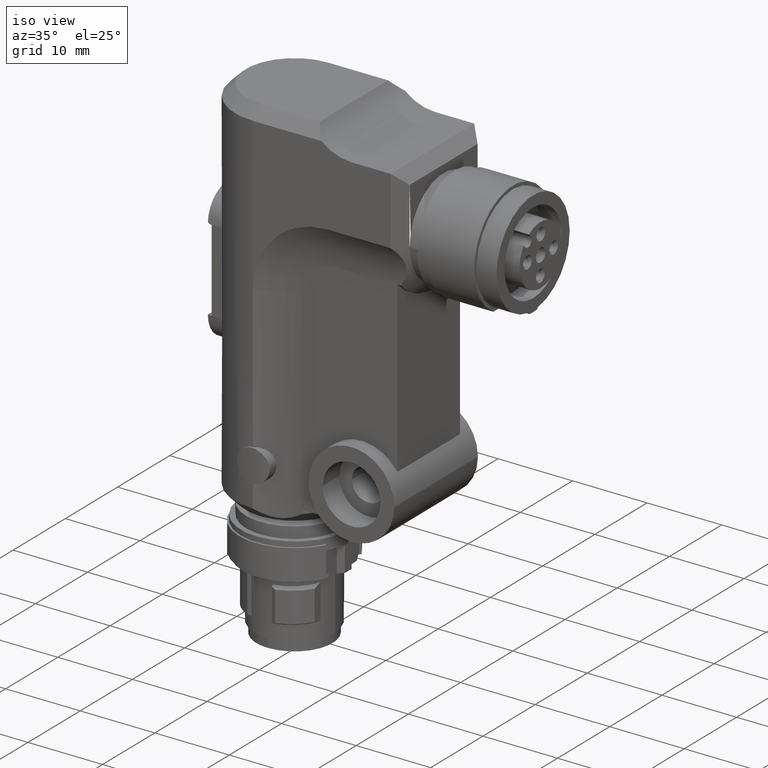
[diagram: clean part render]
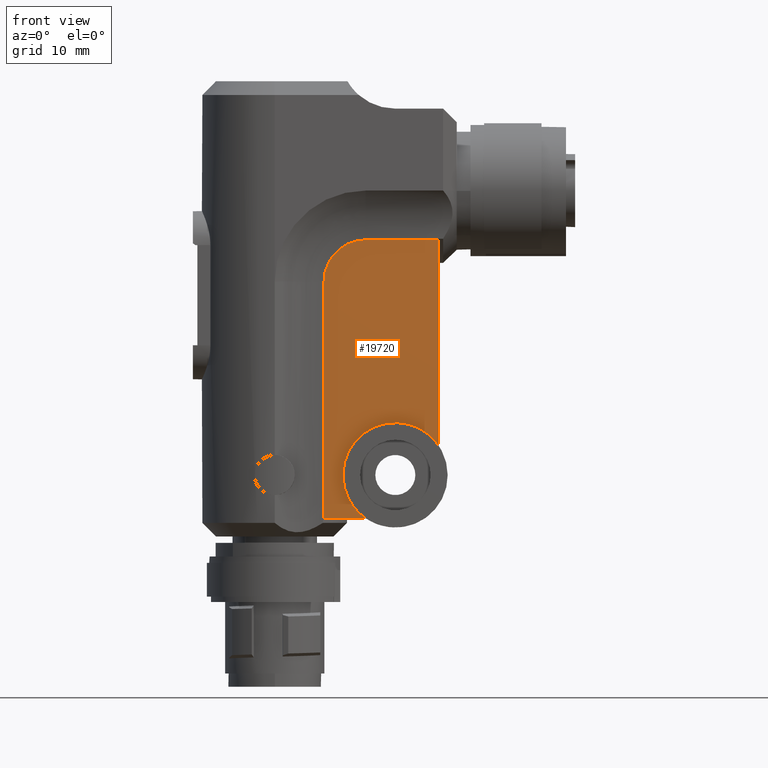
[diagram: tour spotlight — one face highlighted and labeled with its STEP entity id]
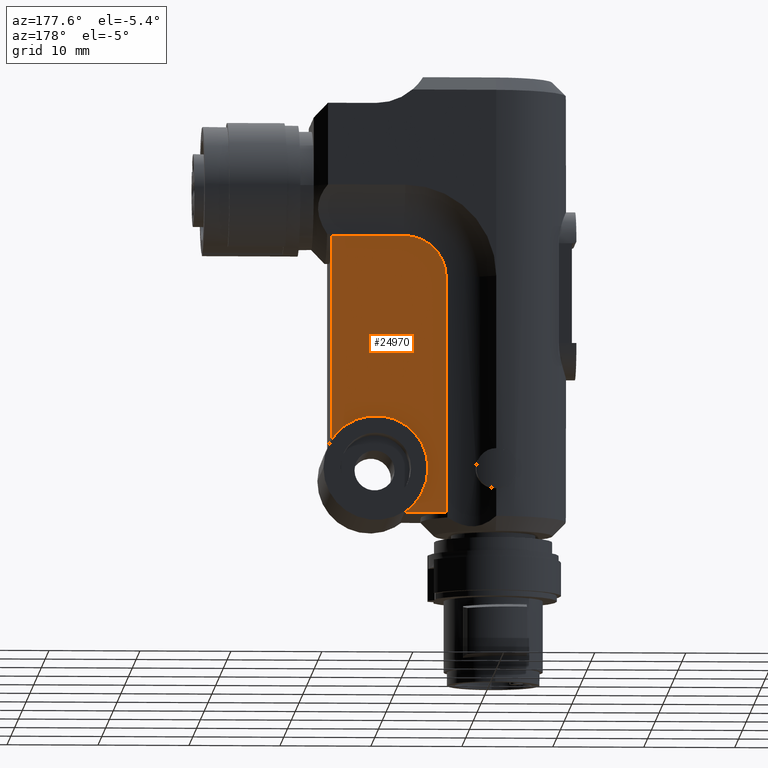
[diagram: tour spotlight — one face highlighted and labeled with its STEP entity id]
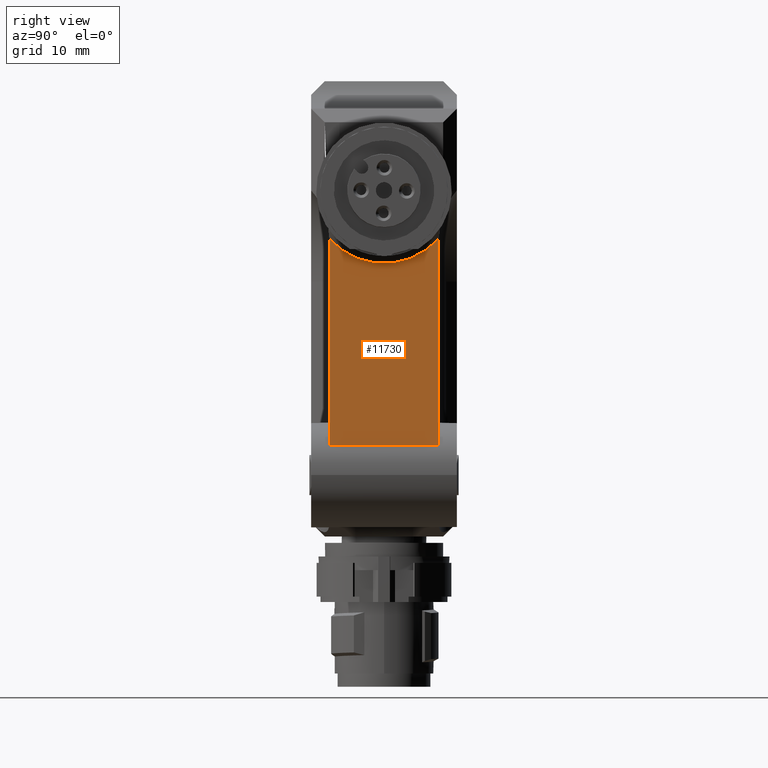
[diagram: tour spotlight — one face highlighted and labeled with its STEP entity id]
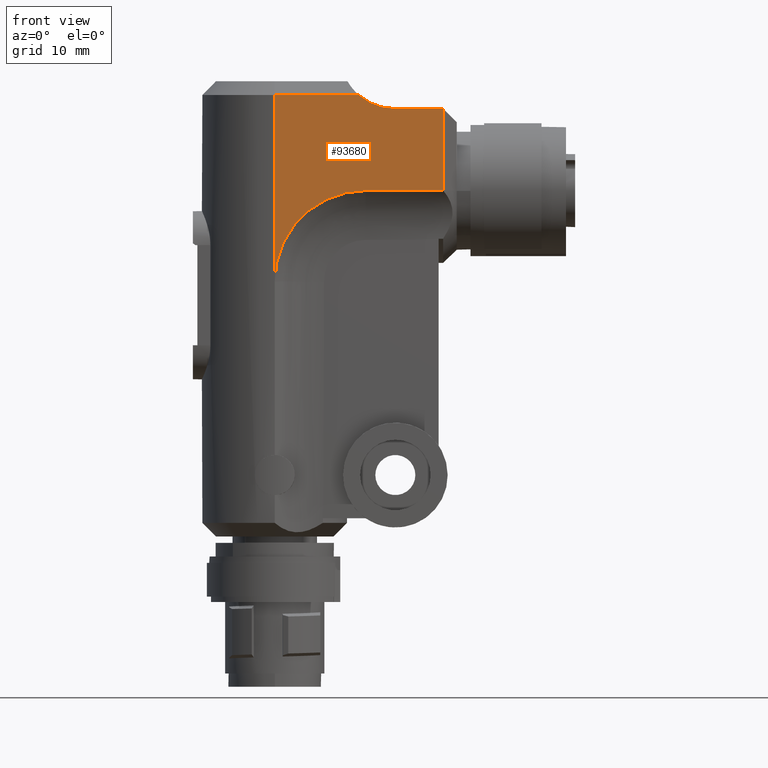
[diagram: tour spotlight — one face highlighted and labeled with its STEP entity id]
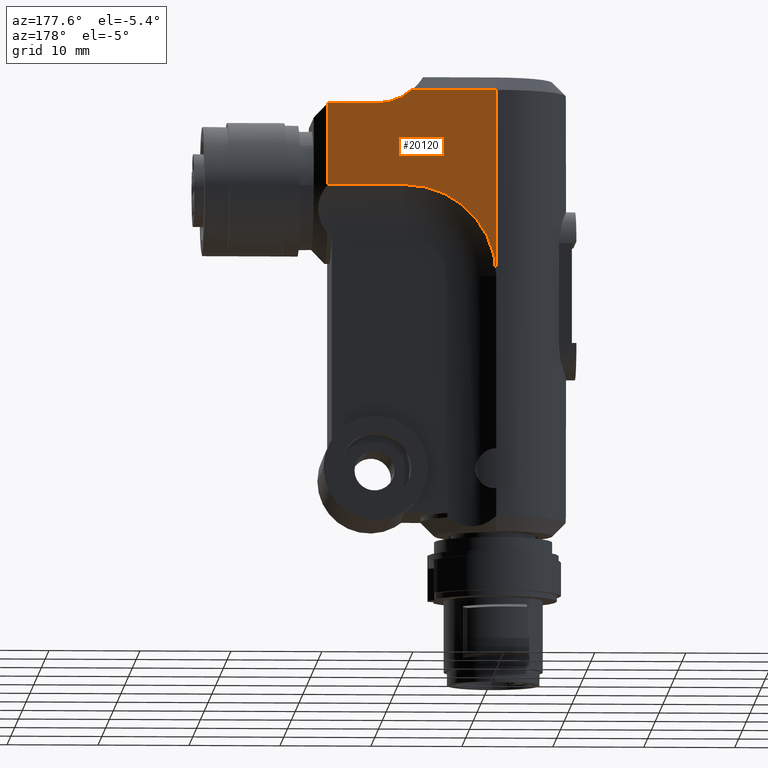
[diagram: tour spotlight — one face highlighted and labeled with its STEP entity id]
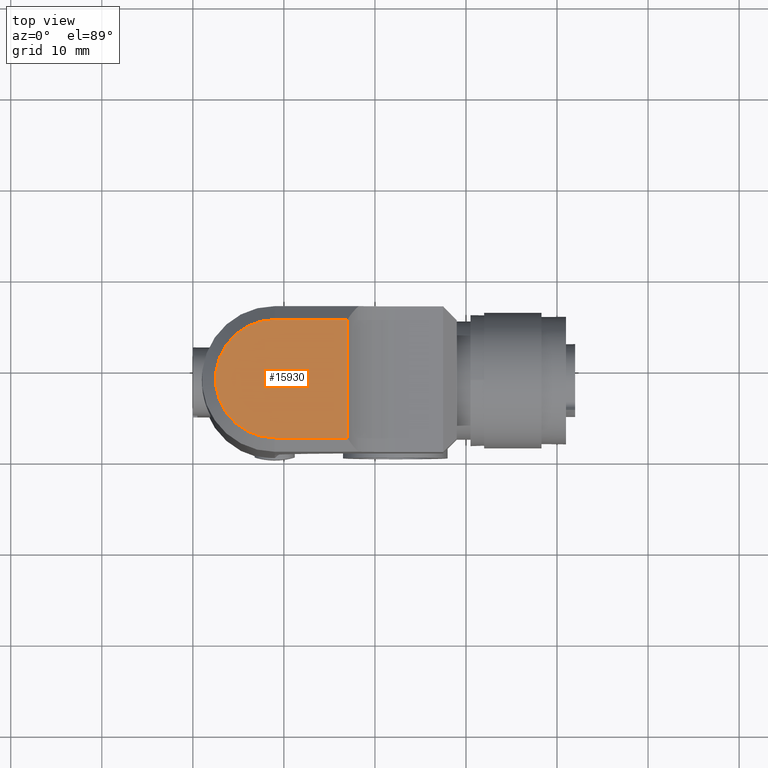
[diagram: tour spotlight — one face highlighted and labeled with its STEP entity id]
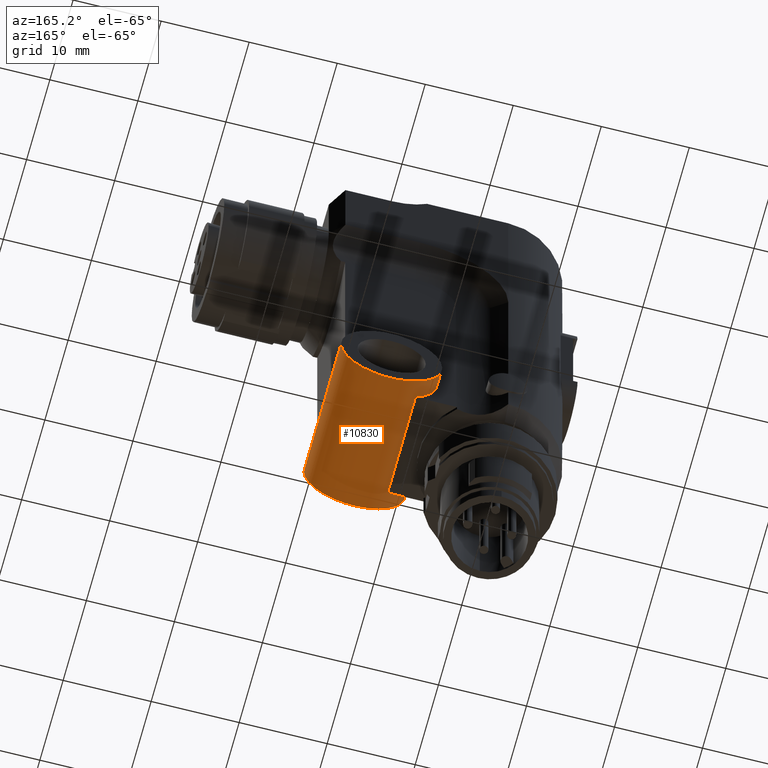
[diagram: tour spotlight — one face highlighted and labeled with its STEP entity id]
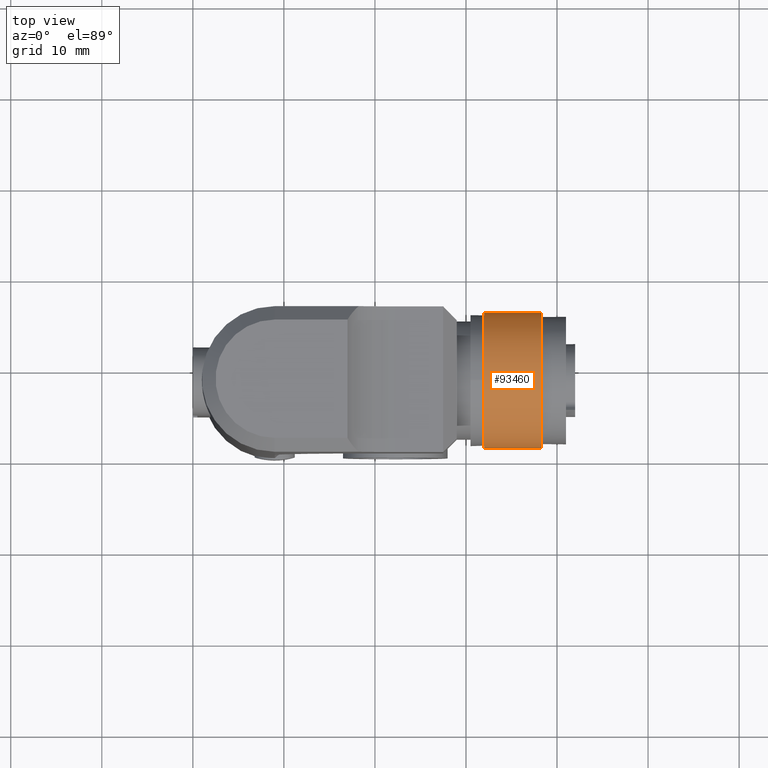
[diagram: tour spotlight — one face highlighted and labeled with its STEP entity id]
A machine part: a face-by-face anatomy tour. The part has 171 B-rep faces; the first image is the clean iso view, then the 8 largest visible faces are spotlighted one at a time (largest first), each with its STEP entity span.

Face 1 — front view, entity #19720. In plain terms, the highlighted planar face has unit normal (0, -1, 0).
Definition (entity closure, byte-faithful):
#10620=CARTESIAN_POINT('',(6.001,10.009629650796,2.));
#10630=VERTEX_POINT('',#10620);
#10660=CARTESIAN_POINT('',(6.001,13.25,6.75000000000001));
#10670=DIRECTION('',(1.,0.,0.));
#10680=DIRECTION('',(0.,1.,0.));
#10690=AXIS2_PLACEMENT_3D('',#10660,#10670,#10680);
#10700=CIRCLE('',#10690,5.75000000000003);
#10710=CARTESIAN_POINT('',(6.001,7.49999999999997,6.75000000000001));
#10720=VERTEX_POINT('',#10710);
#10730=EDGE_CURVE('',#10720,#10630,#10700,.T.);
#11250=CARTESIAN_POINT('',(6.001,18.,32.582010224373));
#11260=VERTEX_POINT('',#11250);
#11610=CARTESIAN_POINT('',(6.001,18.,9.99037034920399));
#11620=VERTEX_POINT('',#11610);
#11650=CARTESIAN_POINT('',(6.001,18.,0.));
#11660=DIRECTION('',(0.,-1.88064205402298E-31,-1.));
#11670=VECTOR('',#11660,1.);
#11680=LINE('',#11650,#11670);
#11690=EDGE_CURVE('',#11260,#11620,#11680,.T.);
#18140=CARTESIAN_POINT('',(6.001,5.41798977562688,2.));
#18150=VERTEX_POINT('',#18140);
#18180=CARTESIAN_POINT('',(6.001,0.,2.));
#18190=DIRECTION('',(0.,-1.,0.));
#18200=VECTOR('',#18190,1.);
#18210=LINE('',#18180,#18200);
#18220=EDGE_CURVE('',#10630,#18150,#18210,.T.);
#19370=CARTESIAN_POINT('',(6.001,15.4615034935439,27.3375668471251));
#19380=DIRECTION('',(1.,0.,0.));
#19390=DIRECTION('',(0.,-1.,0.));
#19400=AXIS2_PLACEMENT_3D('',#19370,#19380,#19390);
#19410=PLANE('',#19400);
#19420=CARTESIAN_POINT('',(6.001,20.,32.582010224373));
#19430=DIRECTION('',(0.,1.,0.));
#19440=VECTOR('',#19430,1.);
#19450=LINE('',#19420,#19440);
#19460=CARTESIAN_POINT('',(6.001,9.99979125739767,32.5820102196181));
#19470=VERTEX_POINT('',#19460);
#19480=EDGE_CURVE('',#19470,#11260,#19450,.T.);
#19490=ORIENTED_EDGE('',*,*,#19480,.F.);
#19500=ORIENTED_EDGE('',*,*,#11690,.F.);
#19510=EDGE_CURVE('',#11620,#10720,#10700,.T.);
#19520=ORIENTED_EDGE('',*,*,#19510,.F.);
#19530=ORIENTED_EDGE('',*,*,#10730,.F.);
#19540=ORIENTED_EDGE('',*,*,#18220,.F.);
#19550=CARTESIAN_POINT('',(6.001,5.41798977562688,0.));
#19560=DIRECTION('',(0.,0.,-1.));
#19570=VECTOR('',#19560,1.);
#19580=LINE('',#19550,#19570);
#19590=CARTESIAN_POINT('',(6.001,5.41798977562713,28.));
#19600=VERTEX_POINT('',#19590);
#19610=EDGE_CURVE('',#19600,#18150,#19580,.T.);
#19620=ORIENTED_EDGE('',*,*,#19610,.T.);
#19630=CARTESIAN_POINT('',(6.001,10.,28.));
#19640=DIRECTION('',(1.,4.93038065763133E-31,2.52970265222012E-16));
#19650=DIRECTION('',(6.89181434628495E-31,-1.,-7.75361359933837E-16));
#19660=AXIS2_PLACEMENT_3D('',#19630,#19640,#19650);
#19670=CIRCLE('',#19660,4.58201022437288);
#19680=EDGE_CURVE('',#19470,#19600,#19670,.T.);
#19690=ORIENTED_EDGE('',*,*,#19680,.T.);
#19700=EDGE_LOOP('',(#19690,#19620,#19540,#19530,#19520,#19500,#19490));
#19710=FACE_OUTER_BOUND('',#19700,.T.);
#19720=ADVANCED_FACE('',(#19710),#19410,.T.);

Face 2 — auxiliary view, entity #24970. In plain terms, the highlighted planar face has unit normal (0, -1, 0).
Definition (entity closure, byte-faithful):
#10450=CARTESIAN_POINT('',(-6.001,7.49999999999997,6.75000000000001));
#10460=VERTEX_POINT('',#10450);
#10490=CARTESIAN_POINT('',(-6.001,13.25,6.75000000000001));
#10500=DIRECTION('',(1.,0.,0.));
#10510=DIRECTION('',(0.,1.,0.));
#10520=AXIS2_PLACEMENT_3D('',#10490,#10500,#10510);
#10530=CIRCLE('',#10520,5.75000000000003);
#10540=CARTESIAN_POINT('',(-6.001,10.009629650796,2.));
#10550=VERTEX_POINT('',#10540);
#10560=EDGE_CURVE('',#10460,#10550,#10530,.T.);
#11450=CARTESIAN_POINT('',(-6.001,18.,32.582010224373));
#11460=VERTEX_POINT('',#11450);
#11490=CARTESIAN_POINT('',(-6.001,18.,0.));
#11500=DIRECTION('',(0.,-1.88064205402298E-31,-1.));
#11510=VECTOR('',#11500,1.);
#11520=LINE('',#11490,#11510);
#11530=CARTESIAN_POINT('',(-6.001,18.,9.99037034920399));
#11540=VERTEX_POINT('',#11530);
#11550=EDGE_CURVE('',#11460,#11540,#11520,.T.);
#14920=CARTESIAN_POINT('',(-6.001,5.41798977562688,2.));
#14930=VERTEX_POINT('',#14920);
#14960=CARTESIAN_POINT('',(-6.001,5.41798977562688,0.));
#14970=DIRECTION('',(0.,0.,-1.));
#14980=VECTOR('',#14970,1.);
#14990=LINE('',#14960,#14980);
#15000=CARTESIAN_POINT('',(-6.001,5.41798977562688,28.));
#15010=VERTEX_POINT('',#15000);
#15020=EDGE_CURVE('',#15010,#14930,#14990,.T.);
#18250=CARTESIAN_POINT('',(-6.001,0.,2.));
#18260=DIRECTION('',(0.,-1.,0.));
#18270=VECTOR('',#18260,1.);
#18280=LINE('',#18250,#18270);
#18290=EDGE_CURVE('',#10550,#14930,#18280,.T.);
#24690=CARTESIAN_POINT('',(-6.001,15.4615034935439,27.3375668471251));
#24700=DIRECTION('',(1.,0.,0.));
#24710=DIRECTION('',(0.,-1.,0.));
#24720=AXIS2_PLACEMENT_3D('',#24690,#24700,#24710);
#24730=PLANE('',#24720);
#24740=CARTESIAN_POINT('',(-6.001,10.,28.));
#24750=DIRECTION('',(1.,-4.93038065763133E-31,-2.52970265222012E-16));
#24760=DIRECTION('',(-6.8918143462851E-31,-1.,-7.75361359933893E-16));
#24770=AXIS2_PLACEMENT_3D('',#24740,#24750,#24760);
#24780=CIRCLE('',#24770,4.58201022437255);
#24790=CARTESIAN_POINT('',(-6.001,9.99979126227064,32.5820102196179));
#24800=VERTEX_POINT('',#24790);
#24810=EDGE_CURVE('',#24800,#15010,#24780,.T.);
#24820=ORIENTED_EDGE('',*,*,#24810,.F.);
#24830=ORIENTED_EDGE('',*,*,#15020,.F.);
#24840=ORIENTED_EDGE('',*,*,#18290,.T.);
#24850=ORIENTED_EDGE('',*,*,#10560,.T.);
#24860=EDGE_CURVE('',#11540,#10460,#10530,.T.);
#24870=ORIENTED_EDGE('',*,*,#24860,.T.);
#24880=ORIENTED_EDGE('',*,*,#11550,.T.);
#24890=CARTESIAN_POINT('',(-6.001,20.,32.582010224373));
#24900=DIRECTION('',(0.,1.,0.));
#24910=VECTOR('',#24900,1.);
#24920=LINE('',#24890,#24910);
#24930=EDGE_CURVE('',#24800,#11460,#24920,.T.);
#24940=ORIENTED_EDGE('',*,*,#24930,.T.);
#24950=EDGE_LOOP('',(#24940,#24880,#24870,#24850,#24840,#24830,#24820));
#24960=FACE_OUTER_BOUND('',#24950,.T.);
#24970=ADVANCED_FACE('',(#24960),#24730,.F.);

Face 3 — right view, entity #11730. In plain terms, the highlighted planar face has unit normal (1, -0, -0).
Definition (entity closure, byte-faithful):
#11150=CARTESIAN_POINT('',(0.0100000000000307,18.,31.7650020016016));
#11160=DIRECTION('',(3.08395284618109E-17,1.,-1.88064205402298E-31));
#11170=DIRECTION('',(-1.,3.08395284618109E-17,8.91609571378369E-16));
#11180=AXIS2_PLACEMENT_3D('',#11150,#11160,#11170);
#11190=PLANE('',#11180);
#11200=CARTESIAN_POINT('',(14.0000000000001,18.,32.7084973778708));
#11210=DIRECTION('',(0.,1.,0.));
#11220=DIRECTION('',(0.,0.,1.));
#11230=AXIS2_PLACEMENT_3D('',#11200,#11210,#11220);
#11240=CIRCLE('',#11230,8.00000000000009);
#11250=CARTESIAN_POINT('',(6.001,18.,32.582010224373));
#11260=VERTEX_POINT('',#11250);
#11270=CARTESIAN_POINT('',(6.,18.,32.7084973778707));
#11280=VERTEX_POINT('',#11270);
#11290=EDGE_CURVE('',#11260,#11280,#11240,.T.);
#11300=ORIENTED_EDGE('',*,*,#11290,.F.);
#11310=CARTESIAN_POINT('',(-2.79776202205539E-14,18.,38.0000000000001));
#11320=DIRECTION('',(0.,1.,0.));
#11330=DIRECTION('',(-1.,0.,6.06816080939055E-32));
#11340=AXIS2_PLACEMENT_3D('',#11310,#11320,#11330);
#11350=CIRCLE('',#11340,8.00000000000019);
#11360=CARTESIAN_POINT('',(-6.,18.,32.7084973778706));
#11370=VERTEX_POINT('',#11360);
#11380=EDGE_CURVE('',#11280,#11370,#11350,.T.);
#11390=ORIENTED_EDGE('',*,*,#11380,.F.);
#11400=CARTESIAN_POINT('',(-14.0000000000001,18.,32.7084973778708));
#11410=DIRECTION('',(0.,-1.,0.));
#11420=DIRECTION('',(0.,0.,1.));
#11430=AXIS2_PLACEMENT_3D('',#11400,#11410,#11420);
#11440=CIRCLE('',#11430,8.00000000000009);
#11450=CARTESIAN_POINT('',(-6.001,18.,32.582010224373));
#11460=VERTEX_POINT('',#11450);
#11470=EDGE_CURVE('',#11460,#11370,#11440,.T.);
#11480=ORIENTED_EDGE('',*,*,#11470,.T.);
#11490=CARTESIAN_POINT('',(-6.001,18.,0.));
#11500=DIRECTION('',(0.,-1.88064205402298E-31,-1.));
#11510=VECTOR('',#11500,1.);
#11520=LINE('',#11490,#11510);
#11530=CARTESIAN_POINT('',(-6.001,18.,9.99037034920399));
#11540=VERTEX_POINT('',#11530);
#11550=EDGE_CURVE('',#11460,#11540,#11520,.T.);
#11560=ORIENTED_EDGE('',*,*,#11550,.F.);
#11570=CARTESIAN_POINT('',(8.,18.,9.99037034920399));
#11580=DIRECTION('',(1.,0.,0.));
#11590=VECTOR('',#11580,1.);
#11600=LINE('',#11570,#11590);
#11610=CARTESIAN_POINT('',(6.001,18.,9.99037034920399));
#11620=VERTEX_POINT('',#11610);
#11630=EDGE_CURVE('',#11540,#11620,#11600,.T.);
#11640=ORIENTED_EDGE('',*,*,#11630,.F.);
#11650=CARTESIAN_POINT('',(6.001,18.,0.));
#11660=DIRECTION('',(0.,-1.88064205402298E-31,-1.));
#11670=VECTOR('',#11660,1.);
#11680=LINE('',#11650,#11670);
#11690=EDGE_CURVE('',#11260,#11620,#11680,.T.);
#11700=ORIENTED_EDGE('',*,*,#11690,.T.);
#11710=EDGE_LOOP('',(#11700,#11640,#11560,#11480,#11390,#11300));
#11720=FACE_OUTER_BOUND('',#11710,.T.);
#11730=ADVANCED_FACE('',(#11720),#11190,.T.);

Face 4 — front view, entity #93680. In plain terms, the highlighted planar face has unit normal (0, -1, 0).
Definition (entity closure, byte-faithful):
#4860=CARTESIAN_POINT('',(8.,3.5527136788005E-15,0.));
#4870=DIRECTION('',(0.,0.,-1.));
#4880=VECTOR('',#4870,1.);
#4890=LINE('',#4860,#4880);
#4900=CARTESIAN_POINT('',(8.,5.28330100839187E-15,48.5));
#4910=VERTEX_POINT('',#4900);
#4920=CARTESIAN_POINT('',(8.,1.95399252334028E-14,28.0000000000002));
#4930=VERTEX_POINT('',#4920);
#4940=EDGE_CURVE('',#4910,#4930,#4890,.T.);
#9790=CARTESIAN_POINT('',(8.,18.5,38.));
#9800=VERTEX_POINT('',#9790);
#9830=CARTESIAN_POINT('',(8.,18.5,0.));
#9840=DIRECTION('',(0.,0.,-1.));
#9850=VECTOR('',#9840,1.);
#9860=LINE('',#9830,#9850);
#9870=CARTESIAN_POINT('',(8.,18.5,47.));
#9880=VERTEX_POINT('',#9870);
#9890=EDGE_CURVE('',#9880,#9800,#9860,.T.);
#18730=CARTESIAN_POINT('',(8.,13.1961524227066,47.));
#18740=VERTEX_POINT('',#18730);
#18860=CARTESIAN_POINT('',(8.,0.,47.));
#18870=DIRECTION('',(0.,-1.,0.));
#18880=VECTOR('',#18870,1.);
#18890=LINE('',#18860,#18880);
#18900=EDGE_CURVE('',#9880,#18740,#18890,.T.);
#19180=CARTESIAN_POINT('',(8.,13.1961524227066,53.));
#19190=DIRECTION('',(-1.,0.,0.));
#19200=DIRECTION('',(0.,1.,0.));
#19210=AXIS2_PLACEMENT_3D('',#19180,#19190,#19200);
#19220=CIRCLE('',#19210,5.99999999999996);
#19230=CARTESIAN_POINT('',(8.,9.2275254561098,48.5));
#19240=VERTEX_POINT('',#19230);
#19250=EDGE_CURVE('',#18740,#19240,#19220,.T.);
#23710=CARTESIAN_POINT('',(8.,20.,38.));
#23720=DIRECTION('',(0.,1.,0.));
#23730=VECTOR('',#23720,1.);
#23740=LINE('',#23710,#23730);
#23750=CARTESIAN_POINT('',(8.,10.0002770649337,38.));
#23760=VERTEX_POINT('',#23750);
#23770=EDGE_CURVE('',#23760,#9800,#23740,.T.);
#25030=CARTESIAN_POINT('',(8.,10.,28.));
#25040=DIRECTION('',(1.,4.93038065763133E-31,2.52970265222012E-16));
#25050=DIRECTION('',(7.62657342238343E-31,-1.,-1.06581410364015E-15));
#25060=AXIS2_PLACEMENT_3D('',#25030,#25040,#25050);
#25070=CIRCLE('',#25060,9.99999999999999);
#25080=EDGE_CURVE('',#23760,#4930,#25070,.T.);
#78660=CARTESIAN_POINT('',(8.,0.,48.5));
#78670=DIRECTION('',(0.,-1.,0.));
#78680=VECTOR('',#78670,1.);
#78690=LINE('',#78660,#78680);
#78700=EDGE_CURVE('',#19240,#4910,#78690,.T.);
#93540=CARTESIAN_POINT('',(8.,7.46028462077985,13.0533067988253));
#93550=DIRECTION('',(1.,0.,0.));
#93560=DIRECTION('',(0.,-1.,0.));
#93570=AXIS2_PLACEMENT_3D('',#93540,#93550,#93560);
#93580=PLANE('',#93570);
#93590=ORIENTED_EDGE('',*,*,#4940,.T.);
#93600=ORIENTED_EDGE('',*,*,#78700,.T.);
#93610=ORIENTED_EDGE('',*,*,#19250,.T.);
#93620=ORIENTED_EDGE('',*,*,#18900,.T.);
#93630=ORIENTED_EDGE('',*,*,#9890,.F.);
#93640=ORIENTED_EDGE('',*,*,#23770,.T.);
#93650=ORIENTED_EDGE('',*,*,#25080,.F.);
#93660=EDGE_LOOP('',(#93650,#93640,#93630,#93620,#93610,#93600,#93590));
#93670=FACE_OUTER_BOUND('',#93660,.T.);
#93680=ADVANCED_FACE('',(#93670),#93580,.T.);

Face 5 — auxiliary view, entity #20120. In plain terms, the highlighted planar face has unit normal (0, -1, 0).
Definition (entity closure, byte-faithful):
#9360=CARTESIAN_POINT('',(-8.,4.56777472988637E-15,28.0000000000002));
#9370=VERTEX_POINT('',#9360);
#9400=CARTESIAN_POINT('',(-8.,3.5527136788005E-15,0.));
#9410=DIRECTION('',(0.,0.,-1.));
#9420=VECTOR('',#9410,1.);
#9430=LINE('',#9400,#9420);
#9440=CARTESIAN_POINT('',(-7.99999999999999,3.55271367880052E-15,48.5));
#9450=VERTEX_POINT('',#9440);
#9460=EDGE_CURVE('',#9450,#9370,#9430,.T.);
#10950=CARTESIAN_POINT('',(-7.99999999999999,18.5,47.));
#10960=VERTEX_POINT('',#10950);
#18750=CARTESIAN_POINT('',(-7.99999999999999,13.1961524227066,47.));
#18760=VERTEX_POINT('',#18750);
#18790=CARTESIAN_POINT('',(-8.,0.,47.));
#18800=DIRECTION('',(0.,-1.,0.));
#18810=VECTOR('',#18800,1.);
#18820=LINE('',#18790,#18810);
#18830=EDGE_CURVE('',#10960,#18760,#18820,.T.);
#19060=CARTESIAN_POINT('',(-8.,9.22752545610978,48.5));
#19070=VERTEX_POINT('',#19060);
#19100=CARTESIAN_POINT('',(-8.,13.1961524227066,53.));
#19110=DIRECTION('',(-1.,0.,0.));
#19120=DIRECTION('',(0.,1.,0.));
#19130=AXIS2_PLACEMENT_3D('',#19100,#19110,#19120);
#19140=CIRCLE('',#19130,5.99999999999996);
#19150=EDGE_CURVE('',#18760,#19070,#19140,.T.);
#19730=CARTESIAN_POINT('',(-7.99999999999999,7.46028462077985,
13.0533067988253));
#19740=DIRECTION('',(1.,0.,0.));
#19750=DIRECTION('',(0.,-1.,0.));
#19760=AXIS2_PLACEMENT_3D('',#19730,#19740,#19750);
#19770=PLANE('',#19760);
#19780=CARTESIAN_POINT('',(-7.99999999999999,20.,38.));
#19790=DIRECTION('',(0.,1.,0.));
#19800=VECTOR('',#19790,1.);
#19810=LINE('',#19780,#19800);
#19820=CARTESIAN_POINT('',(-7.99999999999999,10.,38.));
#19830=VERTEX_POINT('',#19820);
#19840=CARTESIAN_POINT('',(-7.99999999999999,18.5,38.));
#19850=VERTEX_POINT('',#19840);
#19860=EDGE_CURVE('',#19830,#19850,#19810,.T.);
#19870=ORIENTED_EDGE('',*,*,#19860,.F.);
#19880=CARTESIAN_POINT('',(-8.,18.5,0.));
#19890=DIRECTION('',(0.,0.,-1.));
#19900=VECTOR('',#19890,1.);
#19910=LINE('',#19880,#19900);
#19920=EDGE_CURVE('',#10960,#19850,#19910,.T.);
#19930=ORIENTED_EDGE('',*,*,#19920,.T.);
#19940=ORIENTED_EDGE('',*,*,#18830,.F.);
#19950=ORIENTED_EDGE('',*,*,#19150,.F.);
#19960=CARTESIAN_POINT('',(-8.,0.,48.5));
#19970=DIRECTION('',(0.,-1.,0.));
#19980=VECTOR('',#19970,1.);
#19990=LINE('',#19960,#19980);
#20000=EDGE_CURVE('',#19070,#9450,#19990,.T.);
#20010=ORIENTED_EDGE('',*,*,#20000,.F.);
#20020=ORIENTED_EDGE('',*,*,#9460,.F.);
#20030=CARTESIAN_POINT('',(-7.99999999999999,10.,28.));
#20040=DIRECTION('',(1.,-4.93038065763133E-31,-2.52970265222012E-16));
#20050=DIRECTION('',(-7.62657342238343E-31,-1.,-1.06581410364015E-15));
#20060=AXIS2_PLACEMENT_3D('',#20030,#20040,#20050);
#20070=CIRCLE('',#20060,9.99999999999999);
#20080=EDGE_CURVE('',#19830,#9370,#20070,.T.);
#20090=ORIENTED_EDGE('',*,*,#20080,.T.);
#20100=EDGE_LOOP('',(#20090,#20020,#20010,#19950,#19940,#19930,#19870));
#20110=FACE_OUTER_BOUND('',#20100,.T.);
#20120=ADVANCED_FACE('',(#20110),#19770,.F.);

Face 6 — top view, entity #15930. In plain terms, the highlighted planar face has unit normal (-0, 0, -1).
Definition (entity closure, byte-faithful):
#15530=CARTESIAN_POINT('',(8.,-6.5,50.));
#15540=DIRECTION('',(-0.,-4.35162567012851E-15,-1.));
#15550=DIRECTION('',(0.,-1.,4.35162567012851E-15));
#15560=AXIS2_PLACEMENT_3D('',#15530,#15540,#15550);
#15570=PLANE('',#15560);
#15580=CARTESIAN_POINT('',(8.,8.00000000000002,50.));
#15590=DIRECTION('',(-1.,0.,0.));
#15600=VECTOR('',#15590,1.);
#15610=LINE('',#15580,#15600);
#15620=CARTESIAN_POINT('',(6.50000000000006,8.00000000000002,50.));
#15630=VERTEX_POINT('',#15620);
#15640=CARTESIAN_POINT('',(-6.50000000000007,8.00000000000002,50.));
#15650=VERTEX_POINT('',#15640);
#15660=EDGE_CURVE('',#15630,#15650,#15610,.T.);
#15670=ORIENTED_EDGE('',*,*,#15660,.T.);
#15680=CARTESIAN_POINT('',(6.50000000000002,0.,50.));
#15690=DIRECTION('',(-4.35162567012831E-15,-1.,4.35162567012851E-15));
#15700=VECTOR('',#15690,1.);
#15710=LINE('',#15680,#15700);
#15720=CARTESIAN_POINT('',(6.5,4.34873409824628E-15,50.));
#15730=VERTEX_POINT('',#15720);
#15740=EDGE_CURVE('',#15630,#15730,#15710,.T.);
#15750=ORIENTED_EDGE('',*,*,#15740,.F.);
#15760=CARTESIAN_POINT('',(0.,3.5527136788005E-15,50.));
#15770=DIRECTION('',(0.,0.,-1.));
#15780=DIRECTION('',(-1.,0.,0.));
#15790=AXIS2_PLACEMENT_3D('',#15760,#15770,#15780);
#15800=CIRCLE('',#15790,6.5);
#15810=CARTESIAN_POINT('',(-6.5,1.96067283990894E-15,50.));
#15820=VERTEX_POINT('',#15810);
#15830=EDGE_CURVE('',#15730,#15820,#15800,.T.);
#15840=ORIENTED_EDGE('',*,*,#15830,.F.);
#15850=CARTESIAN_POINT('',(-6.50000000000004,0.,50.));
#15860=DIRECTION('',(-4.35162567012832E-15,1.,-4.35162567012851E-15));
#15870=VECTOR('',#15860,1.);
#15880=LINE('',#15850,#15870);
#15890=EDGE_CURVE('',#15820,#15650,#15880,.T.);
#15900=ORIENTED_EDGE('',*,*,#15890,.F.);
#15910=EDGE_LOOP('',(#15900,#15840,#15750,#15670));
#15920=FACE_OUTER_BOUND('',#15910,.T.);
#15930=ADVANCED_FACE('',(#15920),#15570,.F.);

Face 7 — auxiliary view, entity #10830. In plain terms, the highlighted cylindrical surface (partial cylindrical patch) has radius 5.75 mm, axis along (0, -1, 0).
Definition (entity closure, byte-faithful):
#10080=CARTESIAN_POINT('',(8.,13.25,6.75000000000001));
#10090=DIRECTION('',(1.,0.,0.));
#10100=DIRECTION('',(0.,1.,0.));
#10110=AXIS2_PLACEMENT_3D('',#10080,#10090,#10100);
#10120=CYLINDRICAL_SURFACE('',#10110,5.75000000000003);
#10130=CARTESIAN_POINT('',(8.,13.25,6.75000000000001));
#10140=DIRECTION('',(1.,0.,0.));
#10150=DIRECTION('',(0.,1.,0.));
#10160=AXIS2_PLACEMENT_3D('',#10130,#10140,#10150);
#10170=CIRCLE('',#10160,5.75000000000003);
#10180=CARTESIAN_POINT('',(8.,10.5214545305889,1.688622754491));
#10190=VERTEX_POINT('',#10180);
#10200=CARTESIAN_POINT('',(8.,19.,6.75000000000001));
#10210=VERTEX_POINT('',#10200);
#10220=EDGE_CURVE('',#10190,#10210,#10170,.T.);
#10230=ORIENTED_EDGE('',*,*,#10220,.F.);
#10240=CARTESIAN_POINT('',(8.,19.,6.75000000000001));
#10250=DIRECTION('',(1.,0.,0.));
#10260=VECTOR('',#10250,1.);
#10270=LINE('',#10240,#10260);
#10280=CARTESIAN_POINT('',(-7.99999999999999,19.,6.75000000000001));
#10290=VERTEX_POINT('',#10280);
#10300=EDGE_CURVE('',#10290,#10210,#10270,.T.);
#10310=ORIENTED_EDGE('',*,*,#10300,.T.);
#10320=CARTESIAN_POINT('',(-7.99999999999999,13.25,6.75000000000001));
#10330=DIRECTION('',(1.,0.,0.));
#10340=DIRECTION('',(0.,1.,0.));
#10350=AXIS2_PLACEMENT_3D('',#10320,#10330,#10340);
#10360=CIRCLE('',#10350,5.75000000000003);
#10370=CARTESIAN_POINT('',(-7.99999999999999,7.49999999999997,
6.75000000000001));
#10380=VERTEX_POINT('',#10370);
#10390=EDGE_CURVE('',#10380,#10290,#10360,.T.);
#10400=ORIENTED_EDGE('',*,*,#10390,.T.);
#10410=CARTESIAN_POINT('',(8.,7.49999999999997,6.75000000000001));
#10420=DIRECTION('',(1.,0.,0.));
#10430=VECTOR('',#10420,1.);
#10440=LINE('',#10410,#10430);
#10450=CARTESIAN_POINT('',(-6.001,7.49999999999997,6.75000000000001));
#10460=VERTEX_POINT('',#10450);
#10470=EDGE_CURVE('',#10380,#10460,#10440,.T.);
#10480=ORIENTED_EDGE('',*,*,#10470,.F.);
#10490=CARTESIAN_POINT('',(-6.001,13.25,6.75000000000001));
#10500=DIRECTION('',(1.,0.,0.));
#10510=DIRECTION('',(0.,1.,0.));
#10520=AXIS2_PLACEMENT_3D('',#10490,#10500,#10510);
#10530=CIRCLE('',#10520,5.75000000000003);
#10540=CARTESIAN_POINT('',(-6.001,10.009629650796,2.));
#10550=VERTEX_POINT('',#10540);
#10560=EDGE_CURVE('',#10460,#10550,#10530,.T.);
#10570=ORIENTED_EDGE('',*,*,#10560,.F.);
#10580=CARTESIAN_POINT('',(8.,10.009629650796,2.));
#10590=DIRECTION('',(1.,0.,0.));
#10600=VECTOR('',#10590,1.);
#10610=LINE('',#10580,#10600);
#10620=CARTESIAN_POINT('',(6.001,10.009629650796,2.));
#10630=VERTEX_POINT('',#10620);
#10640=EDGE_CURVE('',#10550,#10630,#10610,.T.);
#10650=ORIENTED_EDGE('',*,*,#10640,.F.);
#10660=CARTESIAN_POINT('',(6.001,13.25,6.75000000000001));
#10670=DIRECTION('',(1.,0.,0.));
#10680=DIRECTION('',(0.,1.,0.));
#10690=AXIS2_PLACEMENT_3D('',#10660,#10670,#10680);
#10700=CIRCLE('',#10690,5.75000000000003);
#10710=CARTESIAN_POINT('',(6.001,7.49999999999997,6.75000000000001));
#10720=VERTEX_POINT('',#10710);
#10730=EDGE_CURVE('',#10720,#10630,#10700,.T.);
#10740=ORIENTED_EDGE('',*,*,#10730,.T.);
#10750=CARTESIAN_POINT('',(8.,7.49999999999997,6.75000000000001));
#10760=VERTEX_POINT('',#10750);
#10770=EDGE_CURVE('',#10720,#10760,#10440,.T.);
#10780=ORIENTED_EDGE('',*,*,#10770,.F.);
#10790=EDGE_CURVE('',#10760,#10190,#10170,.T.);
#10800=ORIENTED_EDGE('',*,*,#10790,.F.);
#10810=EDGE_LOOP('',(#10800,#10780,#10740,#10650,#10570,#10480,#10400,
#10310,#10230));
#10820=FACE_OUTER_BOUND('',#10810,.T.);
#10830=ADVANCED_FACE('',(#10820),#10120,.T.);

Face 8 — top view, entity #93460. In plain terms, the highlighted cylindrical surface (partial cylindrical patch) has radius 7.45 mm, axis along (-1, 0, 0).
Definition (entity closure, byte-faithful):
#92180=CARTESIAN_POINT('',(3.78417479617013,29.2999999999937,
31.5826390850925));
#92190=VERTEX_POINT('',#92180);
#92290=CARTESIAN_POINT('',(3.78417479616079,22.9999999999937,
31.5826390850957));
#92300=VERTEX_POINT('',#92290);
#92330=CARTESIAN_POINT('',(3.78417479617008,29.2999999999937,
31.5826390850924));
#92340=DIRECTION('',(-1.47495681344279E-12,-1.,5.13230773890535E-13));
#92350=VECTOR('',#92340,1.);
#92360=LINE('',#92330,#92350);
#92370=EDGE_CURVE('',#92190,#92300,#92360,.T.);
#92530=CARTESIAN_POINT('',(-3.78417479602447,29.3000000000049,
31.582639085034));
#92540=VERTEX_POINT('',#92530);
#92590=CARTESIAN_POINT('',(2.32462937788114E-11,29.3000000000026,
38.0000000000019));
#92600=DIRECTION('',(-1.47495681344279E-12,-1.,5.13230773890535E-13));
#92610=DIRECTION('',(0.999982379698219,-1.47797754356864E-12,
-0.00593635351778232));
#92620=AXIS2_PLACEMENT_3D('',#92590,#92600,#92610);
#92630=CIRCLE('',#92620,7.45);
#92640=EDGE_CURVE('',#92190,#92540,#92630,.T.);
#92840=CARTESIAN_POINT('',(-3.78417479602448,29.3000000000049,
31.582639085034));
#92850=DIRECTION('',(-1.47495681344279E-12,-1.,5.13230773890535E-13));
#92860=VECTOR('',#92850,1.);
#92870=LINE('',#92840,#92860);
#92880=CARTESIAN_POINT('',(-3.78417479603377,23.0000000000049,
31.5826390850372));
#92890=VERTEX_POINT('',#92880);
#92900=EDGE_CURVE('',#92540,#92890,#92870,.T.);
#93140=CARTESIAN_POINT('',(1.39568356871678E-11,23.0000000000026,
38.0000000000051));
#93150=DIRECTION('',(-1.47495681344279E-12,-1.,5.13230773890535E-13));
#93160=DIRECTION('',(0.999982379698219,-1.47797754356864E-12,
-0.00593635351778232));
#93170=AXIS2_PLACEMENT_3D('',#93140,#93150,#93160);
#93180=CIRCLE('',#93170,7.45);
#93190=EDGE_CURVE('',#92300,#92890,#93180,.T.);
#93350=CARTESIAN_POINT('',(2.32462937788114E-11,29.3000000000026,
38.0000000000019));
#93360=DIRECTION('',(-1.47495681344279E-12,-1.,5.13230773890535E-13));
#93370=DIRECTION('',(0.999982379698219,-1.47797754356864E-12,
-0.00593635351778232));
#93380=AXIS2_PLACEMENT_3D('',#93350,#93360,#93370);
#93390=CYLINDRICAL_SURFACE('',#93380,7.45);
#93400=ORIENTED_EDGE('',*,*,#92640,.T.);
#93410=ORIENTED_EDGE('',*,*,#92370,.F.);
#93420=ORIENTED_EDGE('',*,*,#93190,.F.);
#93430=ORIENTED_EDGE('',*,*,#92900,.T.);
#93440=EDGE_LOOP('',(#93430,#93420,#93410,#93400));
#93450=FACE_OUTER_BOUND('',#93440,.T.);
#93460=ADVANCED_FACE('',(#93450),#93390,.T.);